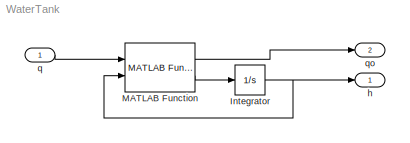
MODEL WaterTank
KIND model
BLOCK [Integrator] Integrator
  InitialCondition = h0
  Ports = [1, 1]
  SID = 2
BLOCK [Reference] MATLAB Function  REF=mci_models/Fluid Systems/Tank with Outflow/MATLAB Function  (lib defined in slx_e9e95a5c75ca)
  AllowZeroVariantControls = off
  AutoFrameSizeCalculation = off
  Latency = 0
  Ports = [2, 2]
  PropagateVariantConditions = off
  RTWMemSecDataConstants = Inherit from model
  RTWMemSecDataInternal = Inherit from model
  RTWMemSecDataParameters = Inherit from model
  RTWMemSecFuncExecute = Inherit from model
  RTWMemSecFuncInitTerm = Inherit from model
  SID = 3
  ShowPortLabels = FromPortIcon
  SourceBlock = mci_models/Fluid Systems/Tank with Outflow/MATLAB Function
  SourceType = SubSystem
  SystemSampleTime = -1
  VariantActivationTime = update diagram
BLOCK [Outport] h
  SID = 4
  VectorParamsAs1DForOutWhenUnconnected = off
BLOCK [Inport] q
  SID = 1
BLOCK [Outport] qo
  Port = 2
  SID = 5
  VectorParamsAs1DForOutWhenUnconnected = off
NET Integrator:1 -> MATLAB Function:2, h:1
LINE MATLAB Function:1 -> qo:1
LINE MATLAB Function:2 -> Integrator:1
LINE q:1 -> MATLAB Function:1
note: NET lines group one-source signal fan-out (src -> all destinations, sorted); 1:1 wires keep LINE
